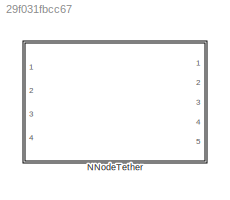
MODEL slx_29f031fbcc67
KIND library
CONFIG AbsTol = auto
CONFIG EnableMultiTasking = off
CONFIG FixedStep = auto
CONFIG MaxStep = auto
CONFIG MinStep = auto
CONFIG RelTol = 1e-3
CONFIG SampleTimeConstraint = Unconstrained
CONFIG Solver = VariableStepAuto
CONFIG SolverName = VariableStepAuto
CONFIG StartTime = 0.0
CONFIG StopTime = 10.0
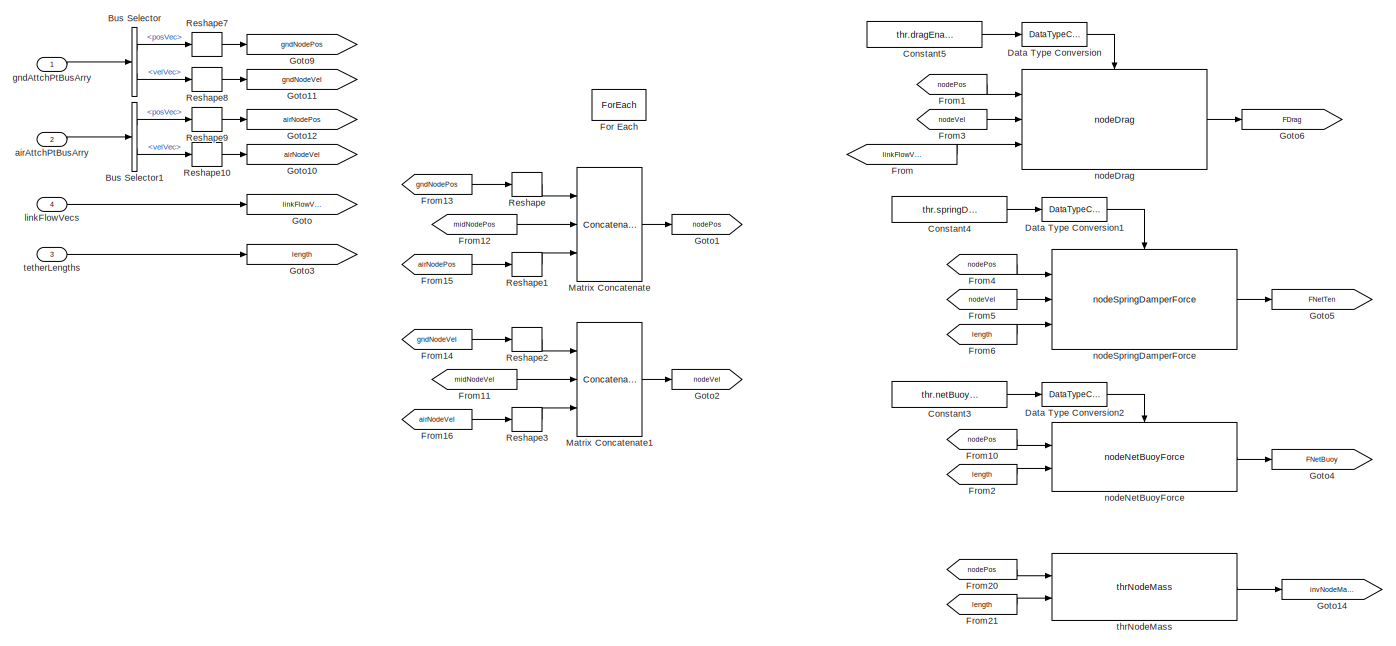
[diagram: NNodeTether - part 1/2, left side, full height]
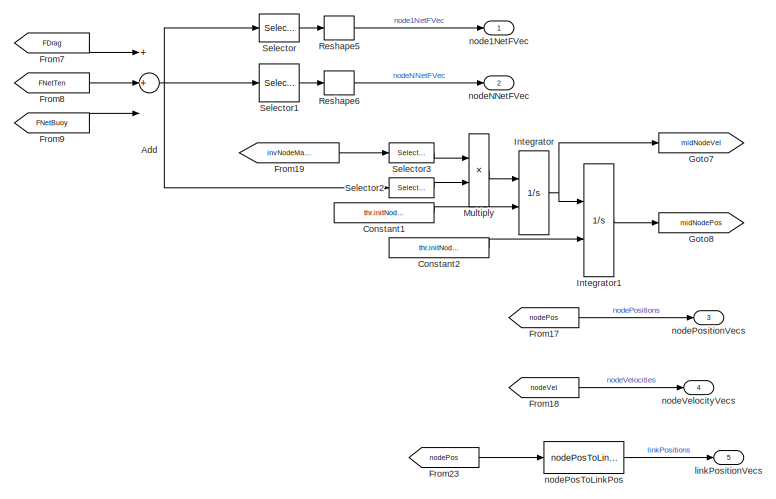
[diagram: NNodeTether - part 2/2, right side, full height]
BLOCK [SubSystem] NNodeTether
  Ports = [4, 5]
  RequestExecContextInheritance = off
  VariantControl = NNodeTether
BLOCK [Sum] NNodeTether/Add
  InputSameDT = off
  Inputs = 3
  OutDataTypeStr = Inherit: Inherit via internal rule
  Ports = [3, 1]
  SaturateOnIntegerOverflow = off
BLOCK [BusSelector] NNodeTether/Bus Selector
  OutputAsBus = off
  OutputSignals = posVec,velVec
  Ports = [1, 2]
BLOCK [BusSelector] NNodeTether/Bus Selector1
  OutputAsBus = off
  OutputSignals = posVec,velVec
  Ports = [1, 2]
BLOCK [Constant] NNodeTether/Constant1
  Value = thr.initNodeVel
BLOCK [Constant] NNodeTether/Constant2
  Value = thr.initNodePos
BLOCK [Constant] NNodeTether/Constant3
  Value = thr.netBuoyEnable
BLOCK [Constant] NNodeTether/Constant4
  Value = thr.springDamperEnable
BLOCK [Constant] NNodeTether/Constant5
  Value = thr.dragEnable
BLOCK [DataTypeConversion] NNodeTether/Data Type Conversion
  OutDataTypeStr = boolean
  RndMeth = Floor
  SaturateOnIntegerOverflow = off
BLOCK [DataTypeConversion] NNodeTether/Data Type Conversion1
  OutDataTypeStr = boolean
  RndMeth = Floor
  SaturateOnIntegerOverflow = off
BLOCK [DataTypeConversion] NNodeTether/Data Type Conversion2
  OutDataTypeStr = boolean
  RndMeth = Floor
  SaturateOnIntegerOverflow = off
BLOCK [ForEach] NNodeTether/For Each
  DisableCoverage = on
  IndexMode = One-based
  IterateSubsysMaskParameter = on,off,off
  Ports = []
  SubsysMaskParameterIterationDimension = 2,1,1
BLOCK [From] NNodeTether/From
  GotoTag = linkFlowVelVecs
BLOCK [From] NNodeTether/From1
  GotoTag = nodePos
BLOCK [From] NNodeTether/From10
  GotoTag = nodePos
BLOCK [From] NNodeTether/From11
  GotoTag = midNodeVel
BLOCK [From] NNodeTether/From12
  GotoTag = midNodePos
BLOCK [From] NNodeTether/From13
  GotoTag = gndNodePos
BLOCK [From] NNodeTether/From14
  GotoTag = gndNodeVel
BLOCK [From] NNodeTether/From15
  GotoTag = airNodePos
BLOCK [From] NNodeTether/From16
  GotoTag = airNodeVel
BLOCK [From] NNodeTether/From17
  GotoTag = nodePos
BLOCK [From] NNodeTether/From18
  GotoTag = nodeVel
BLOCK [From] NNodeTether/From19
  GotoTag = invNodeMasses
BLOCK [From] NNodeTether/From2
  GotoTag = length
BLOCK [From] NNodeTether/From20
  GotoTag = nodePos
BLOCK [From] NNodeTether/From21
  GotoTag = length
BLOCK [From] NNodeTether/From23
  GotoTag = nodePos
BLOCK [From] NNodeTether/From3
  GotoTag = nodeVel
BLOCK [From] NNodeTether/From4
  GotoTag = nodePos
BLOCK [From] NNodeTether/From5
  GotoTag = nodeVel
BLOCK [From] NNodeTether/From6
  GotoTag = length
BLOCK [From] NNodeTether/From7
  GotoTag = FDrag
BLOCK [From] NNodeTether/From8
  GotoTag = FNetTen
BLOCK [From] NNodeTether/From9
  GotoTag = FNetBuoy
BLOCK [Goto] NNodeTether/Goto
  GotoTag = linkFlowVelVecs
BLOCK [Goto] NNodeTether/Goto1
  GotoTag = nodePos
BLOCK [Goto] NNodeTether/Goto10
  GotoTag = airNodeVel
BLOCK [Goto] NNodeTether/Goto11
  GotoTag = gndNodeVel
BLOCK [Goto] NNodeTether/Goto12
  GotoTag = airNodePos
BLOCK [Goto] NNodeTether/Goto14
  GotoTag = invNodeMasses
BLOCK [Goto] NNodeTether/Goto2
  GotoTag = nodeVel
BLOCK [Goto] NNodeTether/Goto3
  GotoTag = length
BLOCK [Goto] NNodeTether/Goto4
  GotoTag = FNetBuoy
BLOCK [Goto] NNodeTether/Goto5
  GotoTag = FNetTen
BLOCK [Goto] NNodeTether/Goto6
  GotoTag = FDrag
BLOCK [Goto] NNodeTether/Goto7
  GotoTag = midNodeVel
BLOCK [Goto] NNodeTether/Goto8
  GotoTag = midNodePos
BLOCK [Goto] NNodeTether/Goto9
  GotoTag = gndNodePos
BLOCK [Integrator] NNodeTether/Integrator
  InitialConditionSource = external
  Ports = [2, 1]
BLOCK [Integrator] NNodeTether/Integrator1
  InitialConditionSource = external
  Ports = [2, 1]
BLOCK [Concatenate] NNodeTether/Matrix Concatenate
  ConcatenateDimension = 2
  Mode = Multidimensional array
  NumInputs = 3
  Ports = [3, 1]
BLOCK [Concatenate] NNodeTether/Matrix Concatenate1
  ConcatenateDimension = 2
  Mode = Multidimensional array
  NumInputs = 3
  Ports = [3, 1]
BLOCK [Product] NNodeTether/Multiply
  InputSameDT = off
  OutDataTypeStr = Inherit: Inherit via internal rule
  Ports = [2, 1]
  RndMeth = Floor
  SaturateOnIntegerOverflow = off
BLOCK [Reshape] NNodeTether/Reshape
  OutputDimensionality = Column vector (2-D)
  Ports = [1, 1]
BLOCK [Reshape] NNodeTether/Reshape1
  OutputDimensionality = Column vector (2-D)
  Ports = [1, 1]
BLOCK [Reshape] NNodeTether/Reshape10
  OutputDimensionality = Column vector (2-D)
  Ports = [1, 1]
BLOCK [Reshape] NNodeTether/Reshape2
  OutputDimensionality = Column vector (2-D)
  Ports = [1, 1]
BLOCK [Reshape] NNodeTether/Reshape3
  OutputDimensionality = Column vector (2-D)
  Ports = [1, 1]
BLOCK [Reshape] NNodeTether/Reshape5
  OutputDimensionality = Column vector (2-D)
  Ports = [1, 1]
BLOCK [Reshape] NNodeTether/Reshape6
  OutputDimensionality = Column vector (2-D)
  Ports = [1, 1]
BLOCK [Reshape] NNodeTether/Reshape7
  OutputDimensionality = Column vector (2-D)
  Ports = [1, 1]
BLOCK [Reshape] NNodeTether/Reshape8
  OutputDimensionality = Column vector (2-D)
  Ports = [1, 1]
BLOCK [Reshape] NNodeTether/Reshape9
  OutputDimensionality = Column vector (2-D)
  Ports = [1, 1]
BLOCK [Selector] NNodeTether/Selector
  IndexOptions = Select all,Index vector (dialog)
  Indices = [1 3],1
  InputPortWidth = 3
  NumberOfDimensions = 2
  OutputSizes = 1,1
  Ports = [1, 1]
BLOCK [Selector] NNodeTether/Selector1
  IndexOptions = Select all,Starting index (dialog)
  Indices = [1 3],numNodes
  InputPortWidth = 3
  NumberOfDimensions = 2
  OutputSizes = 1,1
  Ports = [1, 1]
BLOCK [Selector] NNodeTether/Selector2
  IndexOptions = Select all,Index vector (dialog)
  Indices = [1 3],2:numNodes-1
  InputPortWidth = 3
  NumberOfDimensions = 2
  OutputSizes = 1,1
  Ports = [1, 1]
BLOCK [Selector] NNodeTether/Selector3
  IndexOptions = Select all,Index vector (dialog)
  Indices = [1 3],2:numNodes-1
  InputPortWidth = 3
  NumberOfDimensions = 2
  OutputSizes = 1,1
  Ports = [1, 1]
BLOCK [Inport] NNodeTether/airAttchPtBusArry
  IconDisplay = Port number
  OutDataTypeStr = Bus: thrAttachPtKinematicsBus
  Partition = on
  PartitionDimension = 1
  PartitionOffset = 0
  PartitionWidth = 1
  Port = 2
BLOCK [Inport] NNodeTether/gndAttchPtBusArry
  IconDisplay = Port number
  OutDataTypeStr = Bus: thrAttachPtKinematicsBus
  Partition = on
  PartitionDimension = 1
  PartitionOffset = 0
  PartitionWidth = 1
BLOCK [Inport] NNodeTether/linkFlowVecs
  IconDisplay = Port number
  Partition = on
  PartitionDimension = 3
  PartitionOffset = 0
  PartitionWidth = 1
  Port = 4
BLOCK [Outport] NNodeTether/linkPositionVecs
  ConcatenationDimension = 3
  IconDisplay = Port number
  Port = 5
BLOCK [Outport] NNodeTether/node1NetFVec
  ConcatenationDimension = 3
  IconDisplay = Port number
BLOCK [Reference] NNodeTether/nodeDrag  REF=nodeDragForce_ul/nodeDrag
  Ports = [3, 1, 1]
  SourceBlock = nodeDragForce_ul/nodeDrag
BLOCK [Outport] NNodeTether/nodeNNetFVec
  ConcatenationDimension = 3
  IconDisplay = Port number
  Port = 2
BLOCK [Reference] NNodeTether/nodeNetBuoyForce  REF=nodeNetBuoyForce_ul/nodeNetBuoyForce
  Ports = [2, 1, 1]
  SourceBlock = nodeNetBuoyForce_ul/nodeNetBuoyForce
BLOCK [Reference] NNodeTether/nodePosToLinkPos  REF=nodePosToLinkPos_ul/nodePosToLinkPos
  Ports = [1, 1]
  SourceBlock = nodePosToLinkPos_ul/nodePosToLinkPos
  SourceType = SubSystem
BLOCK [Outport] NNodeTether/nodePositionVecs
  ConcatenationDimension = 3
  IconDisplay = Port number
  Port = 3
BLOCK [Reference] NNodeTether/nodeSpringDamperForce  REF=nodeSpringDamperForce_ul/nodeSpringDamperForce
  Ports = [3, 1, 1]
  SourceBlock = nodeSpringDamperForce_ul/nodeSpringDamperForce
BLOCK [Outport] NNodeTether/nodeVelocityVecs
  ConcatenationDimension = 3
  IconDisplay = Port number
  Port = 4
BLOCK [Inport] NNodeTether/tetherLengths
  IconDisplay = Port number
  Partition = on
  PartitionDimension = 1
  PartitionOffset = 0
  PartitionWidth = 1
  Port = 3
BLOCK [Reference] NNodeTether/thrNodeMass  REF=thrNodeMass_ul/thrNodeMass
  Ports = [2, 1]
  SourceBlock = thrNodeMass_ul/thrNodeMass
NET NNodeTether/Add:1 -> NNodeTether/Selector1:1, NNodeTether/Selector2:1, NNodeTether/Selector:1
LINE NNodeTether/Bus Selector1:1 -> NNodeTether/Reshape9:1
LINE NNodeTether/Bus Selector1:2 -> NNodeTether/Reshape10:1
LINE NNodeTether/Bus Selector:1 -> NNodeTether/Reshape7:1
LINE NNodeTether/Bus Selector:2 -> NNodeTether/Reshape8:1
LINE NNodeTether/Constant1:1 -> NNodeTether/Integrator:2
LINE NNodeTether/Constant2:1 -> NNodeTether/Integrator1:2
LINE NNodeTether/Constant3:1 -> NNodeTether/Data Type Conversion2:1
LINE NNodeTether/Constant4:1 -> NNodeTether/Data Type Conversion1:1
LINE NNodeTether/Constant5:1 -> NNodeTether/Data Type Conversion:1
LINE NNodeTether/Data Type Conversion1:1 -> NNodeTether/nodeSpringDamperForce:enable
LINE NNodeTether/Data Type Conversion2:1 -> NNodeTether/nodeNetBuoyForce:enable
LINE NNodeTether/Data Type Conversion:1 -> NNodeTether/nodeDrag:enable
LINE NNodeTether/From10:1 -> NNodeTether/nodeNetBuoyForce:1
LINE NNodeTether/From11:1 -> NNodeTether/Matrix Concatenate1:2
LINE NNodeTether/From12:1 -> NNodeTether/Matrix Concatenate:2
LINE NNodeTether/From13:1 -> NNodeTether/Reshape:1
LINE NNodeTether/From14:1 -> NNodeTether/Reshape2:1
LINE NNodeTether/From15:1 -> NNodeTether/Reshape1:1
LINE NNodeTether/From16:1 -> NNodeTether/Reshape3:1
LINE NNodeTether/From17:1 -> NNodeTether/nodePositionVecs:1
LINE NNodeTether/From18:1 -> NNodeTether/nodeVelocityVecs:1
LINE NNodeTether/From19:1 -> NNodeTether/Selector3:1
LINE NNodeTether/From1:1 -> NNodeTether/nodeDrag:1
LINE NNodeTether/From20:1 -> NNodeTether/thrNodeMass:1
LINE NNodeTether/From21:1 -> NNodeTether/thrNodeMass:2
LINE NNodeTether/From23:1 -> NNodeTether/nodePosToLinkPos:1
LINE NNodeTether/From2:1 -> NNodeTether/nodeNetBuoyForce:2
LINE NNodeTether/From3:1 -> NNodeTether/nodeDrag:2
LINE NNodeTether/From4:1 -> NNodeTether/nodeSpringDamperForce:1
LINE NNodeTether/From5:1 -> NNodeTether/nodeSpringDamperForce:2
LINE NNodeTether/From6:1 -> NNodeTether/nodeSpringDamperForce:3
LINE NNodeTether/From7:1 -> NNodeTether/Add:1
LINE NNodeTether/From8:1 -> NNodeTether/Add:2
LINE NNodeTether/From9:1 -> NNodeTether/Add:3
LINE NNodeTether/From:1 -> NNodeTether/nodeDrag:3
LINE NNodeTether/Integrator1:1 -> NNodeTether/Goto8:1
NET NNodeTether/Integrator:1 -> NNodeTether/Goto7:1, NNodeTether/Integrator1:1
LINE NNodeTether/Matrix Concatenate1:1 -> NNodeTether/Goto2:1
LINE NNodeTether/Matrix Concatenate:1 -> NNodeTether/Goto1:1
LINE NNodeTether/Multiply:1 -> NNodeTether/Integrator:1
LINE NNodeTether/Reshape10:1 -> NNodeTether/Goto10:1
LINE NNodeTether/Reshape1:1 -> NNodeTether/Matrix Concatenate:3
LINE NNodeTether/Reshape2:1 -> NNodeTether/Matrix Concatenate1:1
LINE NNodeTether/Reshape3:1 -> NNodeTether/Matrix Concatenate1:3
LINE NNodeTether/Reshape5:1 -> NNodeTether/node1NetFVec:1
LINE NNodeTether/Reshape6:1 -> NNodeTether/nodeNNetFVec:1
LINE NNodeTether/Reshape7:1 -> NNodeTether/Goto9:1
LINE NNodeTether/Reshape8:1 -> NNodeTether/Goto11:1
LINE NNodeTether/Reshape9:1 -> NNodeTether/Goto12:1
LINE NNodeTether/Reshape:1 -> NNodeTether/Matrix Concatenate:1
LINE NNodeTether/Selector1:1 -> NNodeTether/Reshape6:1
LINE NNodeTether/Selector2:1 -> NNodeTether/Multiply:2
LINE NNodeTether/Selector3:1 -> NNodeTether/Multiply:1
LINE NNodeTether/Selector:1 -> NNodeTether/Reshape5:1
LINE NNodeTether/airAttchPtBusArry:1 -> NNodeTether/Bus Selector1:1
LINE NNodeTether/gndAttchPtBusArry:1 -> NNodeTether/Bus Selector:1
LINE NNodeTether/linkFlowVecs:1 -> NNodeTether/Goto:1
LINE NNodeTether/nodeDrag:1 -> NNodeTether/Goto6:1
LINE NNodeTether/nodeNetBuoyForce:1 -> NNodeTether/Goto4:1
LINE NNodeTether/nodePosToLinkPos:1 -> NNodeTether/linkPositionVecs:1
LINE NNodeTether/nodeSpringDamperForce:1 -> NNodeTether/Goto5:1
LINE NNodeTether/tetherLengths:1 -> NNodeTether/Goto3:1
LINE NNodeTether/thrNodeMass:1 -> NNodeTether/Goto14:1
note: NET lines group one-source signal fan-out (src -> all destinations, sorted); 1:1 wires keep LINE
